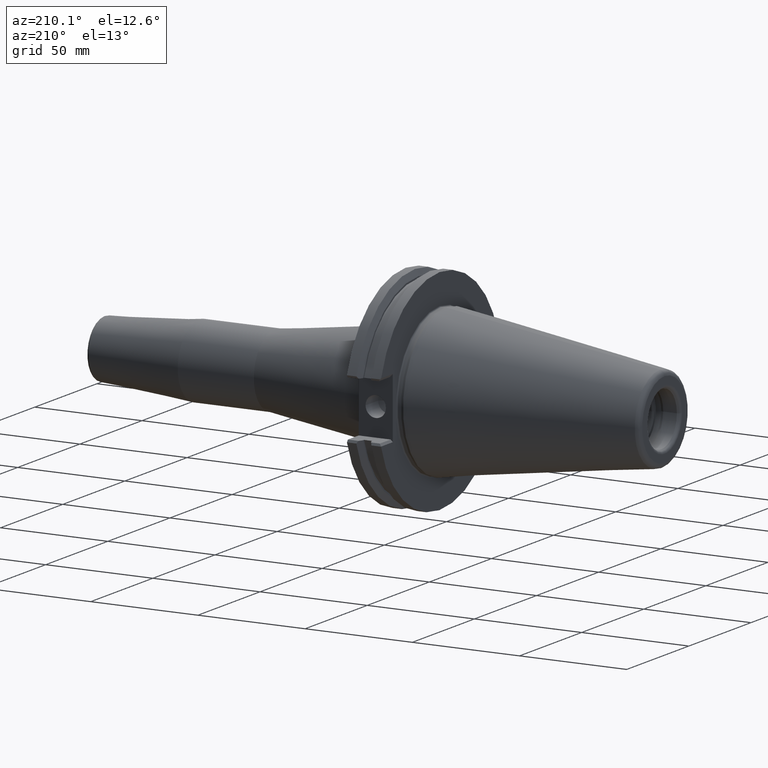
[diagram: clean part render]
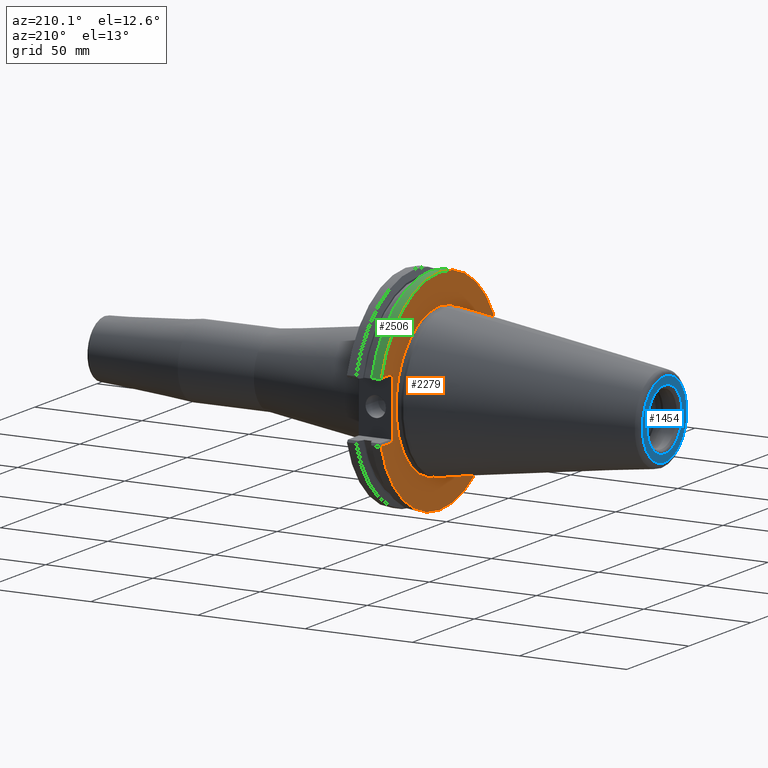
[diagram: same view with three faces highlighted in distinct colors, each labeled with its STEP entity id]
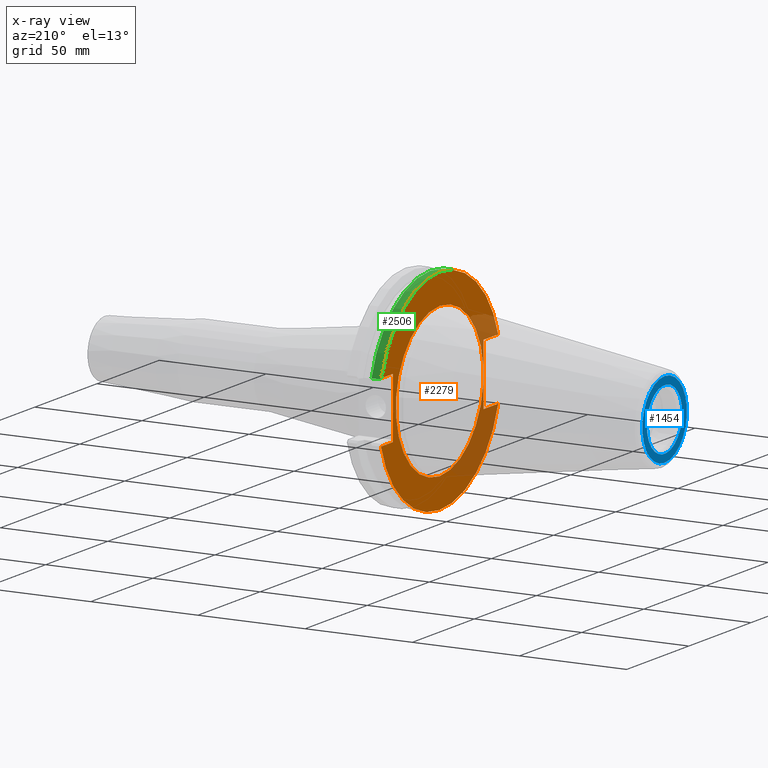
[diagram: x-ray of the same camera — body ghosted, the three highlighted faces saturated]
A machine part, auxiliary view with three faces highlighted in distinct colors.
The next image is the same camera in x-ray (body ghosted, the three faces saturated) — at least one of them is partly hidden behind the body in this view.
Their STEP definitions:

[orange] entity #2279 — the highlighted planar face has unit normal (1, 0, 0).
#583=CARTESIAN_POINT('',(3.15E0,0.E0,0.E0));
#584=DIRECTION('',(1.E0,0.E0,0.E0));
#585=DIRECTION('',(0.E0,0.E0,1.E0));
#586=AXIS2_PLACEMENT_3D('',#583,#584,#585);
#588=CARTESIAN_POINT('',(3.15E0,0.E0,0.E0));
#589=DIRECTION('',(1.E0,0.E0,0.E0));
#590=DIRECTION('',(0.E0,0.E0,-1.E0));
#591=AXIS2_PLACEMENT_3D('',#588,#589,#590);
#593=DIRECTION('',(0.E0,1.E0,0.E0));
#594=VECTOR('',#593,9.477745407877E0);
#595=CARTESIAN_POINT('',(3.15E0,3.7719E1,-1.385E1));
#596=LINE('',#595,#594);
#597=DIRECTION('',(0.E0,-1.E0,0.E0));
#598=VECTOR('',#597,9.354853212266E0);
#599=CARTESIAN_POINT('',(3.15E0,4.707385321227E1,1.435E1));
#600=LINE('',#599,#598);
#601=DIRECTION('',(0.E0,-1.E0,0.E0));
#602=VECTOR('',#601,1.176785321227E1);
#603=CARTESIAN_POINT('',(3.15E0,-3.5306E1,1.435E1));
#604=LINE('',#603,#602);
#605=DIRECTION('',(0.E0,1.E0,0.E0));
#606=VECTOR('',#605,1.176785321227E1);
#607=CARTESIAN_POINT('',(3.15E0,-4.707385321227E1,-1.435E1));
#608=LINE('',#607,#606);
#609=DIRECTION('',(1.390924008965E-14,5.991861250008E-1,-8.006097598747E-1));
#610=VECTOR('',#609,3.192763997083E-2);
#611=CARTESIAN_POINT('',(3.15E0,4.719674540788E1,-1.385E1));
#612=LINE('',#611,#610);
#655=DIRECTION('',(0.E0,0.E0,-1.E0));
#656=VECTOR('',#655,2.82E1);
#657=CARTESIAN_POINT('',(3.15E0,3.7719E1,1.435E1));
#658=LINE('',#657,#656);
#809=CARTESIAN_POINT('',(3.15E0,0.E0,0.E0));
#810=DIRECTION('',(-1.E0,0.E0,0.E0));
#811=DIRECTION('',(0.E0,-9.565426103585E-1,2.915925831852E-1));
#812=AXIS2_PLACEMENT_3D('',#809,#810,#811);
#827=CARTESIAN_POINT('',(3.15E0,0.E0,0.E0));
#828=DIRECTION('',(-1.E0,0.E0,0.E0));
#829=DIRECTION('',(0.E0,9.594285193142E-1,-2.819519752130E-1));
#830=AXIS2_PLACEMENT_3D('',#827,#828,#829);
#936=DIRECTION('',(0.E0,0.E0,1.E0));
#937=VECTOR('',#936,2.87E1);
#938=CARTESIAN_POINT('',(3.15E0,-3.5306E1,-1.435E1));
#939=LINE('',#938,#937);
#1087=CARTESIAN_POINT('',(3.15E0,4.721587600675E1,-1.387556158017E1));
#1089=VERTEX_POINT('',#1087);
#1159=CARTESIAN_POINT('',(3.15E0,0.E0,3.5225E1));
#1160=CARTESIAN_POINT('',(3.15E0,0.E0,-3.5225E1));
#1161=VERTEX_POINT('',#1159);
#1162=VERTEX_POINT('',#1160);
#1187=CARTESIAN_POINT('',(3.15E0,3.7719E1,-1.385E1));
#1188=CARTESIAN_POINT('',(3.15E0,4.719674540788E1,-1.385E1));
#1189=VERTEX_POINT('',#1187);
#1190=VERTEX_POINT('',#1188);
#1201=CARTESIAN_POINT('',(3.15E0,4.707385321227E1,1.435E1));
#1202=CARTESIAN_POINT('',(3.15E0,3.7719E1,1.435E1));
#1203=VERTEX_POINT('',#1201);
#1204=VERTEX_POINT('',#1202);
#1211=CARTESIAN_POINT('',(3.15E0,-4.707385321227E1,-1.435E1));
#1212=CARTESIAN_POINT('',(3.15E0,-3.5306E1,-1.435E1));
#1213=VERTEX_POINT('',#1211);
#1214=VERTEX_POINT('',#1212);
#1221=CARTESIAN_POINT('',(3.15E0,-3.5306E1,1.435E1));
#1222=CARTESIAN_POINT('',(3.15E0,-4.707385321227E1,1.435E1));
#1223=VERTEX_POINT('',#1221);
#1224=VERTEX_POINT('',#1222);
#2249=CARTESIAN_POINT('',(3.15E0,0.E0,0.E0));
#2250=DIRECTION('',(1.E0,0.E0,0.E0));
#2251=DIRECTION('',(0.E0,0.E0,1.E0));
#2252=AXIS2_PLACEMENT_3D('',#2249,#2250,#2251);
#2253=PLANE('',#2252);
#2254=ORIENTED_EDGE('',*,*,#2239,.F.);
#2256=ORIENTED_EDGE('',*,*,#2255,.F.);
#2258=ORIENTED_EDGE('',*,*,#2257,.F.);
#2260=ORIENTED_EDGE('',*,*,#2259,.F.);
#2262=ORIENTED_EDGE('',*,*,#2261,.F.);
#2264=ORIENTED_EDGE('',*,*,#2263,.F.);
#2266=ORIENTED_EDGE('',*,*,#2265,.F.);
#2268=ORIENTED_EDGE('',*,*,#2267,.F.);
#2270=ORIENTED_EDGE('',*,*,#2269,.F.);
#2271=EDGE_LOOP('',(#2254,#2256,#2258,#2260,#2262,#2264,#2266,#2268,#2270));
#2272=FACE_OUTER_BOUND('',#2271,.F.);
#2274=ORIENTED_EDGE('',*,*,#2273,.F.);
#2276=ORIENTED_EDGE('',*,*,#2275,.F.);
#2277=EDGE_LOOP('',(#2274,#2276));
#2278=FACE_BOUND('',#2277,.F.);
#2279=ADVANCED_FACE('',(#2272,#2278),#2253,.F.);
#587=CIRCLE('',#586,3.5225E1);
#592=CIRCLE('',#591,3.5225E1);
#813=CIRCLE('',#812,4.92125E1);
#831=CIRCLE('',#830,4.92125E1);
#2239=EDGE_CURVE('',#1189,#1190,#596,.T.);
#2255=EDGE_CURVE('',#1204,#1189,#658,.T.);
#2257=EDGE_CURVE('',#1203,#1204,#600,.T.);
#2259=EDGE_CURVE('',#1224,#1203,#813,.T.);
#2261=EDGE_CURVE('',#1223,#1224,#604,.T.);
#2263=EDGE_CURVE('',#1214,#1223,#939,.T.);
#2265=EDGE_CURVE('',#1213,#1214,#608,.T.);
#2267=EDGE_CURVE('',#1089,#1213,#831,.T.);
#2269=EDGE_CURVE('',#1190,#1089,#612,.T.);
#2273=EDGE_CURVE('',#1161,#1162,#587,.T.);
#2275=EDGE_CURVE('',#1162,#1161,#592,.T.);

[blue] entity #1454 — the highlighted planar face has unit normal (1, 0, 0).
#43=CARTESIAN_POINT('',(-1.0175E2,0.E0,0.E0));
#44=DIRECTION('',(1.E0,0.E0,0.E0));
#45=DIRECTION('',(0.E0,1.E0,-6.933558693367E-8));
#46=AXIS2_PLACEMENT_3D('',#43,#44,#45);
#48=CARTESIAN_POINT('',(-1.0175E2,0.E0,1.921115422219E-14));
#49=DIRECTION('',(1.E0,0.E0,0.E0));
#50=DIRECTION('',(0.E0,-1.E0,6.933558655561E-8));
#51=AXIS2_PLACEMENT_3D('',#48,#49,#50);
#53=CARTESIAN_POINT('',(-1.0175E2,0.E0,0.E0));
#54=DIRECTION('',(-1.E0,0.E0,0.E0));
#55=DIRECTION('',(0.E0,0.E0,-1.E0));
#56=AXIS2_PLACEMENT_3D('',#53,#54,#55);
#58=CARTESIAN_POINT('',(-1.0175E2,0.E0,0.E0));
#59=DIRECTION('',(-1.E0,0.E0,0.E0));
#60=DIRECTION('',(0.E0,0.E0,1.E0));
#61=AXIS2_PLACEMENT_3D('',#58,#59,#60);
#1131=CARTESIAN_POINT('',(-1.0175E2,1.423205080757E1,-9.867875960127E-7));
#1132=CARTESIAN_POINT('',(-1.0175E2,-1.423205080757E1,9.867876103962E-7));
#1133=VERTEX_POINT('',#1131);
#1134=VERTEX_POINT('',#1132);
#1139=CARTESIAN_POINT('',(-1.0175E2,0.E0,-1.792459727235E1));
#1140=CARTESIAN_POINT('',(-1.0175E2,0.E0,1.792459727235E1));
#1141=VERTEX_POINT('',#1139);
#1142=VERTEX_POINT('',#1140);
#1438=CARTESIAN_POINT('',(-1.0175E2,0.E0,0.E0));
#1439=DIRECTION('',(1.E0,0.E0,0.E0));
#1440=DIRECTION('',(0.E0,0.E0,1.E0));
#1441=AXIS2_PLACEMENT_3D('',#1438,#1439,#1440);
#1442=PLANE('',#1441);
#1443=ORIENTED_EDGE('',*,*,#1428,.F.);
#1445=ORIENTED_EDGE('',*,*,#1444,.F.);
#1446=EDGE_LOOP('',(#1443,#1445));
#1447=FACE_OUTER_BOUND('',#1446,.F.);
#1449=ORIENTED_EDGE('',*,*,#1448,.F.);
#1451=ORIENTED_EDGE('',*,*,#1450,.F.);
#1452=EDGE_LOOP('',(#1449,#1451));
#1453=FACE_BOUND('',#1452,.F.);
#1454=ADVANCED_FACE('',(#1447,#1453),#1442,.F.);
#47=CIRCLE('',#46,1.423205080757E1);
#52=CIRCLE('',#51,1.423205080757E1);
#57=CIRCLE('',#56,1.792459727235E1);
#62=CIRCLE('',#61,1.792459727235E1);
#1428=EDGE_CURVE('',#1141,#1142,#57,.T.);
#1444=EDGE_CURVE('',#1142,#1141,#62,.T.);
#1448=EDGE_CURVE('',#1133,#1134,#47,.T.);
#1450=EDGE_CURVE('',#1134,#1133,#52,.T.);

[green] entity #2506 — the highlighted cylindrical surface (partial cylindrical patch) has radius 49.2125 mm, axis along (1, 0, 0).
#756=CARTESIAN_POINT('',(7.613833230924E0,0.E0,0.E0));
#757=DIRECTION('',(-1.E0,0.E0,0.E0));
#758=DIRECTION('',(0.E0,-9.594285193142E-1,2.819519752130E-1));
#759=AXIS2_PLACEMENT_3D('',#756,#757,#758);
#791=CARTESIAN_POINT('',(3.624438419830E0,4.721587600675E1,1.387556158017E1));
#792=CARTESIAN_POINT('',(3.466168157346E0,4.716936434671E1,1.403383184265E1));
#793=CARTESIAN_POINT('',(3.308021838335E0,4.712202461158E1,1.419197816166E1));
#794=CARTESIAN_POINT('',(3.15E0,4.707385321227E1,1.435E1));
#796=DIRECTION('',(-1.E0,0.E0,0.E0));
#797=VECTOR('',#796,3.989394811095E0);
#798=CARTESIAN_POINT('',(7.613833230924E0,4.721587600675E1,1.387556158017E1));
#799=LINE('',#798,#797);
#800=DIRECTION('',(1.E0,0.E0,0.E0));
#801=VECTOR('',#800,3.989394811095E0);
#802=CARTESIAN_POINT('',(3.624438419830E0,-4.721587600675E1,1.387556158017E1));
#803=LINE('',#802,#801);
#804=CARTESIAN_POINT('',(3.15E0,-4.707385321227E1,1.435E1));
#805=CARTESIAN_POINT('',(3.308021838335E0,-4.712202461158E1,1.419197816166E1));
#806=CARTESIAN_POINT('',(3.466168157346E0,-4.716936434671E1,1.403383184265E1));
#807=CARTESIAN_POINT('',(3.624438419830E0,-4.721587600675E1,1.387556158017E1));
#809=CARTESIAN_POINT('',(3.15E0,0.E0,0.E0));
#810=DIRECTION('',(-1.E0,0.E0,0.E0));
#811=DIRECTION('',(0.E0,-9.565426103585E-1,2.915925831852E-1));
#812=AXIS2_PLACEMENT_3D('',#809,#810,#811);
#1199=CARTESIAN_POINT('',(3.624438419830E0,4.721587600675E1,1.387556158017E1));
#1200=VERTEX_POINT('',#1199);
#1201=CARTESIAN_POINT('',(3.15E0,4.707385321227E1,1.435E1));
#1203=VERTEX_POINT('',#1201);
#1215=CARTESIAN_POINT('',(3.624438419830E0,-4.721587600675E1,1.387556158017E1));
#1217=VERTEX_POINT('',#1215);
#1222=CARTESIAN_POINT('',(3.15E0,-4.707385321227E1,1.435E1));
#1224=VERTEX_POINT('',#1222);
#1233=CARTESIAN_POINT('',(7.613833230924E0,4.721587600675E1,1.387556158017E1));
#1234=VERTEX_POINT('',#1233);
#1235=CARTESIAN_POINT('',(7.613833230924E0,-4.721587600675E1,1.387556158017E1));
#1236=VERTEX_POINT('',#1235);
#2491=CARTESIAN_POINT('',(0.E0,0.E0,0.E0));
#2492=DIRECTION('',(1.E0,0.E0,0.E0));
#2493=DIRECTION('',(0.E0,0.E0,1.E0));
#2494=AXIS2_PLACEMENT_3D('',#2491,#2492,#2493);
#2495=CYLINDRICAL_SURFACE('',#2494,4.92125E1);
#2496=ORIENTED_EDGE('',*,*,#2390,.F.);
#2497=ORIENTED_EDGE('',*,*,#2406,.F.);
#2498=ORIENTED_EDGE('',*,*,#2443,.F.);
#2500=ORIENTED_EDGE('',*,*,#2499,.F.);
#2502=ORIENTED_EDGE('',*,*,#2501,.F.);
#2503=ORIENTED_EDGE('',*,*,#2259,.T.);
#2504=EDGE_LOOP('',(#2496,#2497,#2498,#2500,#2502,#2503));
#2505=FACE_OUTER_BOUND('',#2504,.F.);
#2506=ADVANCED_FACE('',(#2505),#2495,.T.);
#760=CIRCLE('',#759,4.92125E1);
#795=B_SPLINE_CURVE_WITH_KNOTS('',3,(#791,#792,#793,#794),.UNSPECIFIED.,.F.,.F.,
(4,4),(0.E0,1.E0),.UNSPECIFIED.);
#808=B_SPLINE_CURVE_WITH_KNOTS('',3,(#804,#805,#806,#807),.UNSPECIFIED.,.F.,.F.,
(4,4),(0.E0,1.E0),.UNSPECIFIED.);
#813=CIRCLE('',#812,4.92125E1);
#2259=EDGE_CURVE('',#1224,#1203,#813,.T.);
#2390=EDGE_CURVE('',#1200,#1203,#795,.T.);
#2406=EDGE_CURVE('',#1234,#1200,#799,.T.);
#2443=EDGE_CURVE('',#1236,#1234,#760,.T.);
#2499=EDGE_CURVE('',#1217,#1236,#803,.T.);
#2501=EDGE_CURVE('',#1224,#1217,#808,.T.);